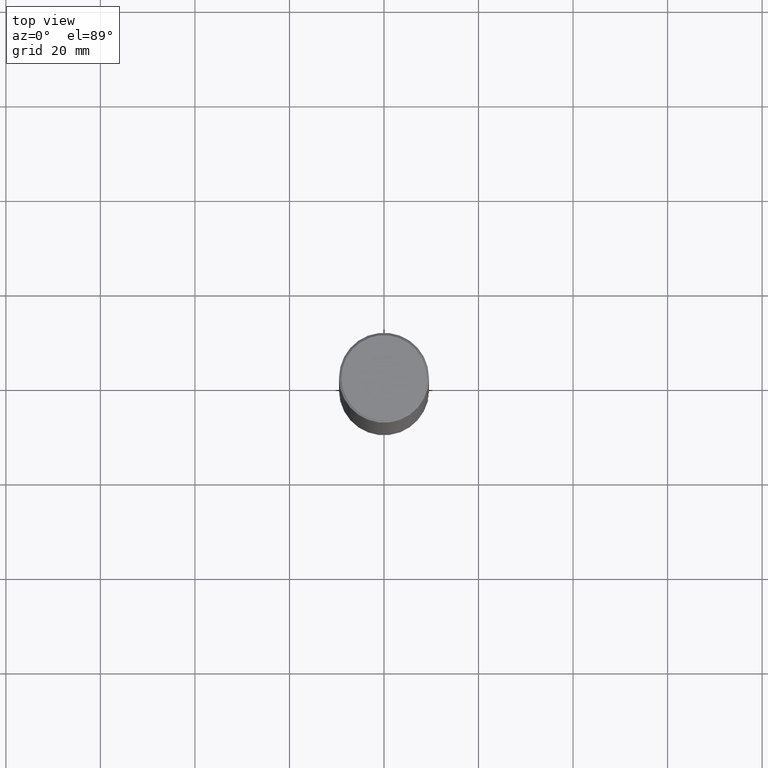
[diagram: clean part render]
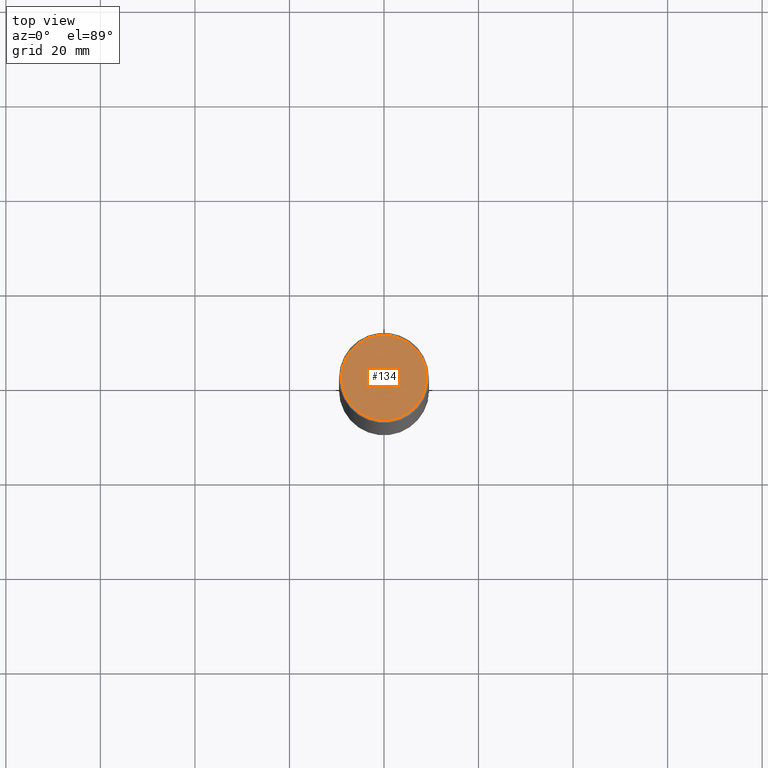
[diagram: same view with one face highlighted and labeled with its STEP entity id]
A machine part, top view. The second image highlights one B-rep face of the part: STEP entity #134.
In plain terms, the highlighted planar face has unit normal (0, -0, -1).
Its self-contained STEP definition (entity closure, byte-faithful):
#32 = ORIENTED_EDGE ( 'NONE', *, *, #241, .T. ) ;
#37 = ORIENTED_EDGE ( 'NONE', *, *, #292, .T. ) ;
#65 = DIRECTION ( 'NONE',  ( -1.000000000000000000, 6.982962677686265922E-15, -4.876176775795935793E-29 ) ) ;
#78 = DIRECTION ( 'NONE',  ( 1.000000000000000000, -6.982962677686265922E-15, 4.876231632511992107E-29 ) ) ;
#79 = CARTESIAN_POINT ( 'NONE',  ( -2.087702828670439639E-46, 2.980686340760894400E-32, 8.537024980200822558E-18 ) ) ;
#120 = VERTEX_POINT ( 'NONE', #170 ) ;
#134 = ADVANCED_FACE ( 'NONE', ( #201 ), #145, .F. ) ;
#140 = VERTEX_POINT ( 'NONE', #358 ) ;
#142 = AXIS2_PLACEMENT_3D ( 'NONE', #79, #252, #245 ) ;
#145 = PLANE ( 'NONE',  #197 ) ;
#170 = CARTESIAN_POINT ( 'NONE',  ( 0.3549999999999997047, -2.538996582575039076E-15, 8.537024980218368550E-18 ) ) ;
#197 = AXIS2_PLACEMENT_3D ( 'NONE', #351, #323, #65 ) ;
#201 = FACE_OUTER_BOUND ( 'NONE', #361, .T. ) ;
#213 = CARTESIAN_POINT ( 'NONE',  ( -2.087702828670439639E-46, 2.980686340760894400E-32, 8.537024980200822558E-18 ) ) ;
#241 = EDGE_CURVE ( 'NONE', #120, #140, #307, .T. ) ;
#245 = DIRECTION ( 'NONE',  ( 1.000000000000000000, -6.982962677686265922E-15, 4.876231632511992107E-29 ) ) ;
#252 = DIRECTION ( 'NONE',  ( -2.445468806185136597E-29, 3.491481338843145583E-15, 1.000000000000000000 ) ) ;
#292 = EDGE_CURVE ( 'NONE', #140, #120, #350, .T. ) ;
#307 = CIRCLE ( 'NONE', #315, 0.3549999999999997047 ) ;
#315 = AXIS2_PLACEMENT_3D ( 'NONE', #213, #336, #78 ) ;
#323 = DIRECTION ( 'NONE',  ( 2.438088387897960049E-29, -3.491481338843145188E-15, -1.000000000000000000 ) ) ;
#336 = DIRECTION ( 'NONE',  ( -2.445468806185136597E-29, 3.491481338843145583E-15, 1.000000000000000000 ) ) ;
#350 = CIRCLE ( 'NONE', #142, 0.3549999999999997047 ) ;
#351 = CARTESIAN_POINT ( 'NONE',  ( 2.478951750578622237E-15, 0.3549999999999997047, -1.235207362799215228E-15 ) ) ;
#358 = CARTESIAN_POINT ( 'NONE',  ( -0.3549999999999997047, 2.513866563967053491E-15, 8.537024980183364388E-18 ) ) ;
#361 = EDGE_LOOP ( 'NONE', ( #37, #32 ) ) ;